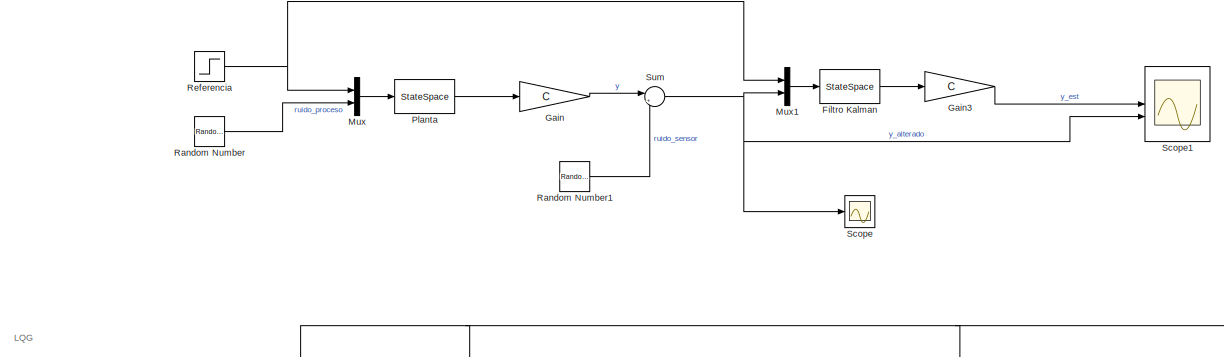
[diagram: root canvas - part 1/8, top left region]
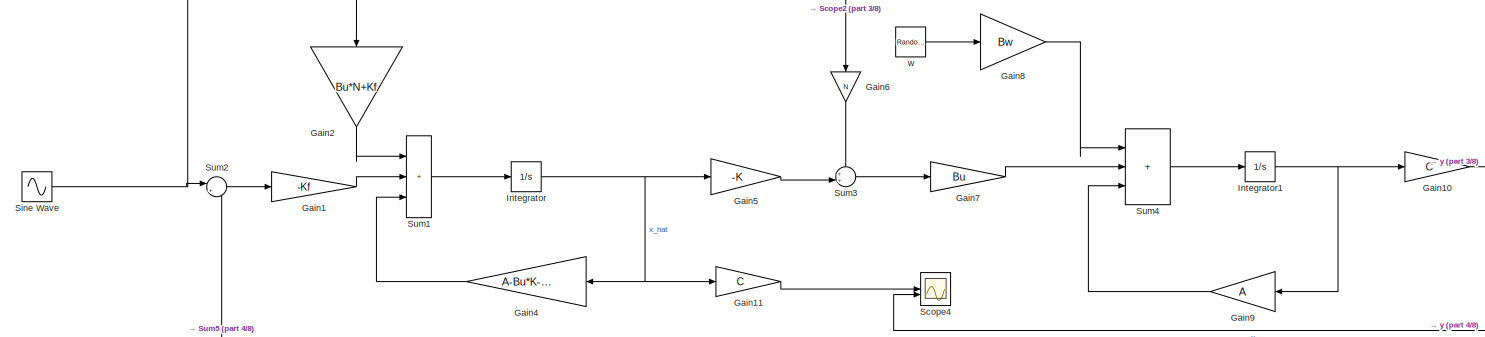
[diagram: root canvas - part 2/8, full width, top band]
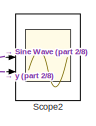
[diagram: root canvas - part 3/8, top right region]
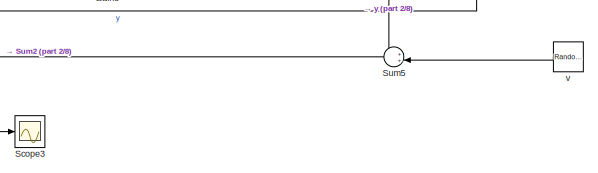
[diagram: root canvas - part 4/8, middle right region]
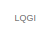
[diagram: root canvas - part 5/8, middle left region]
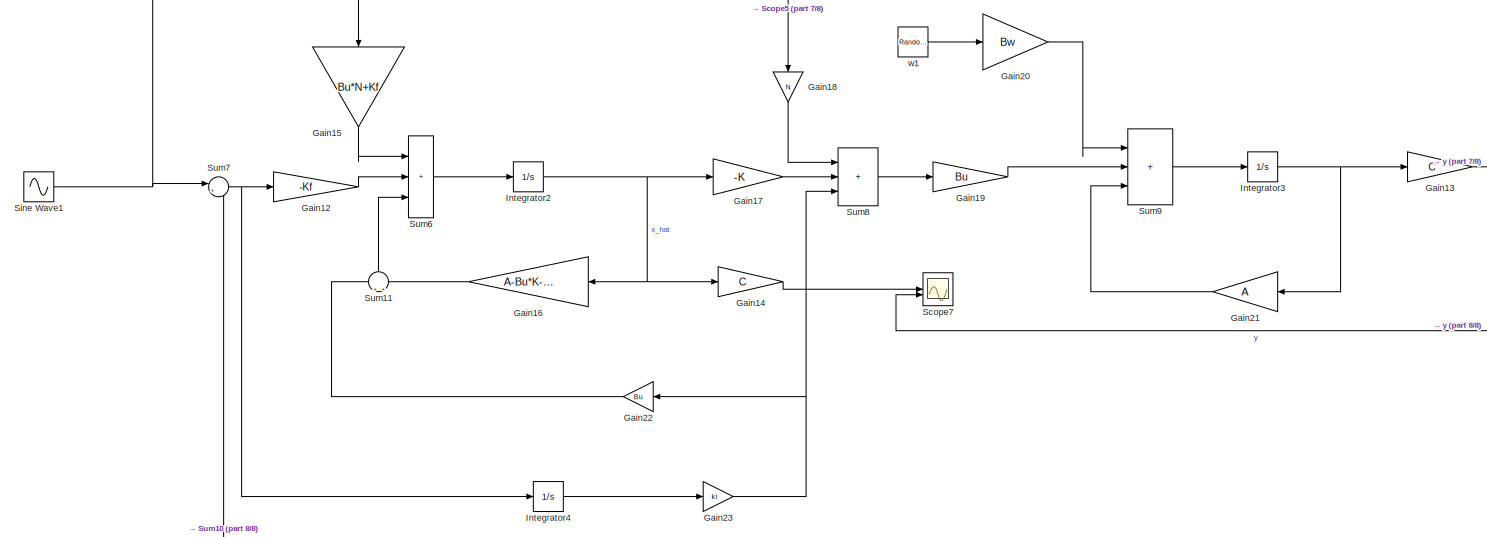
[diagram: root canvas - part 6/8, full width, bottom band]
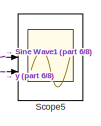
[diagram: root canvas - part 7/8, middle right region]
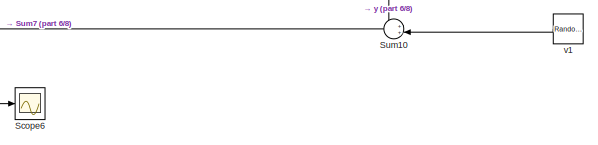
[diagram: root canvas - part 8/8, bottom right region]
MODEL slx_fd4d2145e11f
KIND model
CONFIG AbsTol = auto
CONFIG EnableMultiTasking = off
CONFIG FixedStep = auto
CONFIG MaxStep = 1e-3
CONFIG MinStep = auto
CONFIG RelTol = 1e-3
CONFIG SampleTimeConstraint = Unconstrained
CONFIG SolverName = VariableStepAuto
CONFIG StartTime = 0.0
CONFIG StopTime = 10
BLOCK [StateSpace] Filtro Kalman 
  A = A-Kf*C
  B = [Bu Kf]
  C = eye(2)
  Commented = on
  D = zeros(2,2)
  InitialCondition = 0
BLOCK [Gain] Gain
  Commented = on
  Gain = C
  Multiplication = Matrix(K*u) (u vector)
BLOCK [Gain] Gain1
  Gain = -Kf
  Multiplication = Matrix(K*u) (u vector)
BLOCK [Gain] Gain10
  Gain = C
  Multiplication = Matrix(K*u) (u vector)
BLOCK [Gain] Gain11
  Gain = C
  Multiplication = Matrix(K*u) (u vector)
BLOCK [Gain] Gain12
  Gain = -Kf
  Multiplication = Matrix(K*u) (u vector)
BLOCK [Gain] Gain13
  Gain = C
  Multiplication = Matrix(K*u) (u vector)
BLOCK [Gain] Gain14
  Gain = C
  Multiplication = Matrix(K*u) (u vector)
BLOCK [Gain] Gain15
  Gain = Bu*N+Kf
  Multiplication = Matrix(K*u) (u vector)
  NameLocation = left
BLOCK [Gain] Gain16
  Gain = A-Bu*K-Kf*C
  Multiplication = Matrix(K*u) (u vector)
BLOCK [Gain] Gain17
  Gain = -K
  Multiplication = Matrix(K*u) (u vector)
BLOCK [Gain] Gain18
  Gain = N
  NameLocation = left
BLOCK [Gain] Gain19
  Gain = Bu
  Multiplication = Matrix(K*u) (u vector)
BLOCK [Gain] Gain2
  Gain = Bu*N+Kf
  Multiplication = Matrix(K*u) (u vector)
  NameLocation = left
BLOCK [Gain] Gain20
  Gain = Bw
  Multiplication = Matrix(K*u) (u vector)
BLOCK [Gain] Gain21
  Gain = A
  Multiplication = Matrix(K*u) (u vector)
BLOCK [Gain] Gain22
  Gain = Bu
BLOCK [Gain] Gain23
  Gain = ki
BLOCK [Gain] Gain3
  Commented = on
  Gain = C
  Multiplication = Matrix(K*u) (u vector)
BLOCK [Gain] Gain4
  Gain = A-Bu*K-Kf*C
  Multiplication = Matrix(K*u) (u vector)
BLOCK [Gain] Gain5
  Gain = -K
  Multiplication = Matrix(K*u) (u vector)
BLOCK [Gain] Gain6
  Gain = N
  NameLocation = left
BLOCK [Gain] Gain7
  Gain = Bu
  Multiplication = Matrix(K*u) (u vector)
BLOCK [Gain] Gain8
  Gain = Bw
  Multiplication = Matrix(K*u) (u vector)
BLOCK [Gain] Gain9
  Gain = A
  Multiplication = Matrix(K*u) (u vector)
BLOCK [Integrator] Integrator
BLOCK [Integrator] Integrator1
BLOCK [Integrator] Integrator2
BLOCK [Integrator] Integrator3
BLOCK [Integrator] Integrator4
BLOCK [Mux] Mux
  Commented = on
  DisplayOption = bar
  Inputs = 2
BLOCK [Mux] Mux1
  Commented = on
  DisplayOption = bar
  Inputs = 2
BLOCK [StateSpace] Planta
  A = A
  B = [Bu Bw]
  C = eye(2)
  Commented = on
  D = zeros(2,2)
  InitialCondition = [1 0]
BLOCK [RandomNumber] Random Number
  Commented = on
  SampleTime = 0.01
  Variance = 0.2^2
BLOCK [RandomNumber] Random Number1
  Commented = on
  SampleTime = 0.01
  Variance = 0.1^2
  VectorParams1D = off
BLOCK [Step] Referencia
  Commented = on
  SampleTime = 0
BLOCK [Scope] Scope
  Commented = on
  Floating = off
  NumInputPorts = 1
  ScopeSpecificationString = Simulink.scopes.TimeScopeBlockCfg('CurrentConfiguration', extmgr.ConfigurationSet(extmgr.Configuration('Core','General UI',true),extmgr.Configuration('Core','Source UI',true),extmgr.Configuration('Sources','WiredSimulink',true,'DataLoggingVariableName','ScopeData1'),extmgr.Configuration('Visuals','Time Domain',true,'SerializedDisplays',{struct('MinYLimReal','-259374.9421','MaxYLimReal','285444.872...<+1478ch>
BLOCK [Scope] Scope1
  Commented = on
  Floating = off
  NumInputPorts = 2
  ScopeSpecificationString = Simulink.scopes.TimeScopeBlockCfg('CurrentConfiguration', extmgr.ConfigurationSet(extmgr.Configuration('Core','General UI',true,'FigureColor',[1 1 1]),extmgr.Configuration('Core','Source UI',true),extmgr.Configuration('Sources','WiredSimulink',true),extmgr.Configuration('Visuals','Time Domain',true,'SerializedDisplays',{struct('MinYLimReal','-1.58314','MaxYLimReal','14.24829','YLabelReal','','MinY...<+1650ch>
BLOCK [Scope] Scope2
  Floating = off
  NumInputPorts = 2
  ScopeSpecificationString = Simulink.scopes.TimeScopeBlockCfg('CurrentConfiguration', extmgr.ConfigurationSet(extmgr.Configuration('Core','General UI',true,'FigureColor',[1 1 1]),extmgr.Configuration('Core','Source UI',true),extmgr.Configuration('Sources','WiredSimulink',true,'DataLoggingVariableName','ScopeData2'),extmgr.Configuration('Visuals','Time Domain',true,'SerializedDisplays',{struct('MinYLimReal','-1.25491','MaxYLi...<+1650ch>
BLOCK [Scope] Scope3
  Floating = off
  NumInputPorts = 1
  ScopeSpecificationString = Simulink.scopes.TimeScopeBlockCfg('CurrentConfiguration', extmgr.ConfigurationSet(extmgr.Configuration('Core','General UI',true),extmgr.Configuration('Core','Source UI',true),extmgr.Configuration('Sources','WiredSimulink',true,'DataLoggingVariableName','ScopeData3'),extmgr.Configuration('Visuals','Time Domain',true,'SerializedDisplays',{struct('MinYLimReal','-0.16684','MaxYLimReal','1.18219','YLab...<+1363ch>
BLOCK [Scope] Scope4
  Floating = off
  NumInputPorts = 2
  ScopeSpecificationString = Simulink.scopes.TimeScopeBlockCfg('CurrentConfiguration', extmgr.ConfigurationSet(extmgr.Configuration('Core','General UI',true),extmgr.Configuration('Core','Source UI',true),extmgr.Configuration('Sources','WiredSimulink',true,'DataLoggingVariableName','ScopeData4'),extmgr.Configuration('Visuals','Time Domain',true,'SerializedDisplays',{struct('MinYLimReal','-0.13932','MaxYLimReal','1.14933','YLab...<+1440ch>
BLOCK [Scope] Scope5
  Floating = off
  NumInputPorts = 2
  ScopeSpecificationString = Simulink.scopes.TimeScopeBlockCfg('CurrentConfiguration', extmgr.ConfigurationSet(extmgr.Configuration('Core','General UI',true,'FigureColor',[1 1 1]),extmgr.Configuration('Core','Source UI',true),extmgr.Configuration('Sources','WiredSimulink',true,'DataLoggingVariableName','ScopeData1'),extmgr.Configuration('Visuals','Time Domain',true,'SerializedDisplays',{struct('MinYLimReal','-1.25491','MaxYLi...<+1650ch>
BLOCK [Scope] Scope6
  Floating = off
  NumInputPorts = 1
  ScopeSpecificationString = Simulink.scopes.TimeScopeBlockCfg('CurrentConfiguration', extmgr.ConfigurationSet(extmgr.Configuration('Core','General UI',true),extmgr.Configuration('Core','Source UI',true),extmgr.Configuration('Sources','WiredSimulink',true,'DataLoggingVariableName','ScopeData2'),extmgr.Configuration('Visuals','Time Domain',true,'SerializedDisplays',{struct('MinYLimReal','-0.16684','MaxYLimReal','1.18219','YLab...<+1363ch>
BLOCK [Scope] Scope7
  Floating = off
  NumInputPorts = 2
  ScopeSpecificationString = Simulink.scopes.TimeScopeBlockCfg('CurrentConfiguration', extmgr.ConfigurationSet(extmgr.Configuration('Core','General UI',true),extmgr.Configuration('Core','Source UI',true),extmgr.Configuration('Sources','WiredSimulink',true,'DataLoggingVariableName','ScopeData3'),extmgr.Configuration('Visuals','Time Domain',true,'SerializedDisplays',{struct('MinYLimReal','-0.13932','MaxYLimReal','1.14933','YLab...<+1440ch>
BLOCK [Sin] Sine Wave
  Phase = 1
  SampleTime = 0
BLOCK [Sin] Sine Wave1
  Phase = 1
  SampleTime = 0
BLOCK [Sum] Sum
  Commented = on
  Inputs = |++
BLOCK [Sum] Sum1
  IconShape = rectangular
  Inputs = |+++
BLOCK [Sum] Sum10
  Inputs = ++|
BLOCK [Sum] Sum11
  Inputs = +|+
  NameLocation = right
BLOCK [Sum] Sum2
  Inputs = |+-
BLOCK [Sum] Sum3
  Inputs = ++|
BLOCK [Sum] Sum4
  IconShape = rectangular
  Inputs = |+++
BLOCK [Sum] Sum5
  Inputs = ++|
BLOCK [Sum] Sum6
  IconShape = rectangular
  Inputs = |+++
BLOCK [Sum] Sum7
  Inputs = |+-
BLOCK [Sum] Sum8
  IconShape = rectangular
  Inputs = +++
BLOCK [Sum] Sum9
  IconShape = rectangular
  Inputs = |+++
BLOCK [RandomNumber] v
  SampleTime = 0.001
  Variance = 0.01^2
  VectorParams1D = off
BLOCK [RandomNumber] v1
  SampleTime = 0.001
  Variance = 0.01^2
  VectorParams1D = off
BLOCK [RandomNumber] w
  SampleTime = 0.001
  Variance = 0.02^2
BLOCK [RandomNumber] w1
  SampleTime = 0.001
  Variance = 0.02^2
ANNOTATION (root): LQG
ANNOTATION (root): LQGI
LINE Filtro Kalman :1 -> Gain3:1
NET Gain10:1 -> Scope2:2, Scope4:2, Sum5:1
LINE Gain11:1 -> Scope4:1
LINE Gain12:1 -> Sum6:2
NET Gain13:1 -> Scope5:2, Scope7:2, Sum10:1
LINE Gain14:1 -> Scope7:1
LINE Gain15:1 -> Sum6:1
LINE Gain16:1 -> Sum11:2
LINE Gain17:1 -> Sum8:2
LINE Gain18:1 -> Sum8:1
LINE Gain19:1 -> Sum9:2
LINE Gain1:1 -> Sum1:2
LINE Gain20:1 -> Sum9:1
LINE Gain21:1 -> Sum9:3
LINE Gain22:1 -> Sum11:1
NET Gain23:1 -> Gain22:1, Sum8:3
LINE Gain2:1 -> Sum1:1
LINE Gain3:1 -> Scope1:1
LINE Gain4:1 -> Sum1:3
LINE Gain5:1 -> Sum3:2
LINE Gain6:1 -> Sum3:1
LINE Gain7:1 -> Sum4:2
LINE Gain8:1 -> Sum4:1
LINE Gain9:1 -> Sum4:3
LINE Gain:1 -> Sum:1
NET Integrator1:1 -> Gain10:1, Gain9:1
NET Integrator2:1 -> Gain14:1, Gain16:1, Gain17:1
NET Integrator3:1 -> Gain13:1, Gain21:1
LINE Integrator4:1 -> Gain23:1
NET Integrator:1 -> Gain11:1, Gain4:1, Gain5:1
LINE Mux1:1 -> Filtro Kalman :1
LINE Mux:1 -> Planta:1
LINE Planta:1 -> Gain:1
LINE Random Number1:1 -> Sum:2
LINE Random Number:1 -> Mux:2
NET Referencia:1 -> Mux1:1, Mux:1
NET Sine Wave1:1 -> Gain15:1, Gain18:1, Scope5:1, Sum7:1
NET Sine Wave:1 -> Gain2:1, Gain6:1, Scope2:1, Sum2:1
NET Sum10:1 -> Scope6:1, Sum7:2
LINE Sum11:1 -> Sum6:3
LINE Sum1:1 -> Integrator:1
LINE Sum2:1 -> Gain1:1
LINE Sum3:1 -> Gain7:1
LINE Sum4:1 -> Integrator1:1
NET Sum5:1 -> Scope3:1, Sum2:2
LINE Sum6:1 -> Integrator2:1
NET Sum7:1 -> Gain12:1, Integrator4:1
LINE Sum8:1 -> Gain19:1
LINE Sum9:1 -> Integrator3:1
NET Sum:1 -> Mux1:2, Scope1:2, Scope:1
LINE v1:1 -> Sum10:2
LINE v:1 -> Sum5:2
LINE w1:1 -> Gain20:1
LINE w:1 -> Gain8:1
note: NET lines group one-source signal fan-out (src -> all destinations, sorted); 1:1 wires keep LINE
